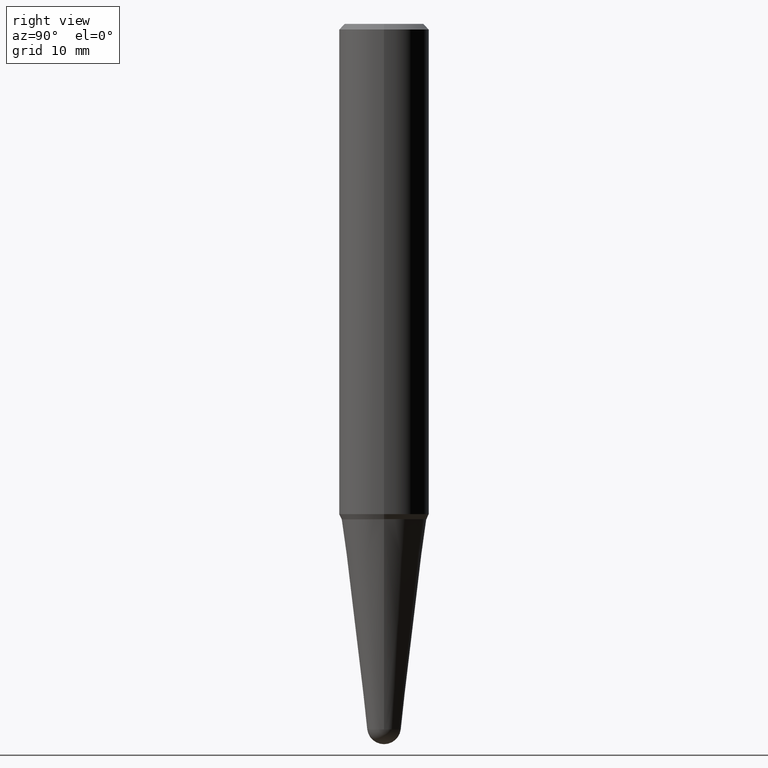
[diagram: clean part render]
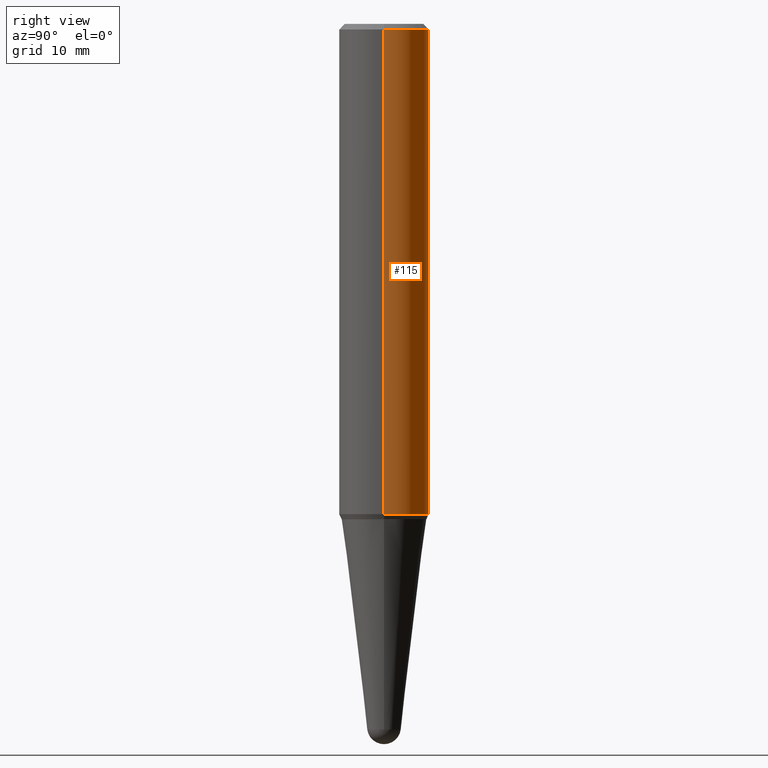
[diagram: same view with one face highlighted and labeled with its STEP entity id]
A machine part, right view. The second image highlights one B-rep face of the part: STEP entity #115.
In plain terms, the highlighted cylindrical surface (partial cylindrical patch) has radius 6.35 mm, axis along (-0, 0, 1).
Its self-contained STEP definition (entity closure, byte-faithful):
#9 = VECTOR ( 'NONE', #112, 39.37007874015748143 ) ;
#23 = AXIS2_PLACEMENT_3D ( 'NONE', #328, #224, #193 ) ;
#24 = CARTESIAN_POINT ( 'NONE',  ( -0.2500000000000001665, 1.776356839400254015E-15, 5.931196827434174486E-16 ) ) ;
#57 = ORIENTED_EDGE ( 'NONE', *, *, #352, .T. ) ;
#58 = CARTESIAN_POINT ( 'NONE',  ( 0.2500000000000003331, -1.125173466965008602E-14, -2.722624891181058437 ) ) ;
#59 = ORIENTED_EDGE ( 'NONE', *, *, #459, .F. ) ;
#71 = LINE ( 'NONE', #143, #9 ) ;
#86 = DIRECTION ( 'NONE',  ( -2.445468806185136597E-29, 3.491481338843145583E-15, 1.000000000000000000 ) ) ;
#105 = DIRECTION ( 'NONE',  ( -2.445468806185136597E-29, 3.491481338843145583E-15, 1.000000000000000000 ) ) ;
#112 = DIRECTION ( 'NONE',  ( -2.445468806185136877E-29, 3.491481338843145188E-15, 1.000000000000000000 ) ) ;
#115 = ADVANCED_FACE ( 'NONE', ( #329 ), #330, .T. ) ;
#143 = CARTESIAN_POINT ( 'NONE',  ( 0.2500000000000001665, -1.745740669421565692E-15, 5.931196827434418047E-16 ) ) ;
#162 = VERTEX_POINT ( 'NONE', #188 ) ;
#171 = EDGE_LOOP ( 'NONE', ( #304, #57, #252, #59 ) ) ;
#188 = CARTESIAN_POINT ( 'NONE',  ( -0.2500000000000003331, -7.729637160828264142E-15, -2.722624891181058437 ) ) ;
#193 = DIRECTION ( 'NONE',  ( 1.000000000000000000, -6.982962677686266711E-15, 0.000000000000000000 ) ) ;
#195 = EDGE_CURVE ( 'NONE', #243, #384, #227, .T. ) ;
#197 = AXIS2_PLACEMENT_3D ( 'NONE', #258, #86, #228 ) ;
#209 = DIRECTION ( 'NONE',  ( 1.000000000000000000, -6.982962677686269077E-15, 0.000000000000000000 ) ) ;
#224 = DIRECTION ( 'NONE',  ( -2.445468806185136597E-29, 3.491481338843145583E-15, 1.000000000000000000 ) ) ;
#227 = CIRCLE ( 'NONE', #23, 0.2500000000000000000 ) ;
#228 = DIRECTION ( 'NONE',  ( 1.000000000000000000, -6.982962677686266711E-15, 4.852736867747362844E-29 ) ) ;
#234 = VECTOR ( 'NONE', #303, 39.37007874015748143 ) ;
#242 = VERTEX_POINT ( 'NONE', #58 ) ;
#243 = VERTEX_POINT ( 'NONE', #412 ) ;
#252 = ORIENTED_EDGE ( 'NONE', *, *, #195, .F. ) ;
#258 = CARTESIAN_POINT ( 'NONE',  ( -1.450455682483482035E-44, 2.070866303999251778E-30, 5.931196827434296760E-16 ) ) ;
#265 = AXIS2_PLACEMENT_3D ( 'NONE', #425, #105, #209 ) ;
#303 = DIRECTION ( 'NONE',  ( -2.445468806185136877E-29, 3.491481338843145188E-15, 1.000000000000000000 ) ) ;
#304 = ORIENTED_EDGE ( 'NONE', *, *, #448, .T. ) ;
#328 = CARTESIAN_POINT ( 'NONE',  ( 7.642090019328565002E-31, -1.091087918388484967E-16, -0.03125000000000005551 ) ) ;
#329 = FACE_OUTER_BOUND ( 'NONE', #171, .T. ) ;
#330 = CYLINDRICAL_SURFACE ( 'NONE', #197, 0.2500000000000001665 ) ;
#352 = EDGE_CURVE ( 'NONE', #162, #384, #442, .T. ) ;
#370 = CARTESIAN_POINT ( 'NONE',  ( -0.2500000000000000000, -3.031194556633429811E-15, -0.03125000000000005551 ) ) ;
#384 = VERTEX_POINT ( 'NONE', #370 ) ;
#404 = CIRCLE ( 'NONE', #265, 0.2500000000000003331 ) ;
#412 = CARTESIAN_POINT ( 'NONE',  ( 0.2500000000000000000, -1.854849461260415384E-15, -0.03125000000000005551 ) ) ;
#425 = CARTESIAN_POINT ( 'NONE',  ( 6.658094242326480624E-29, -9.505994000228516185E-15, -2.722624891181058437 ) ) ;
#442 = LINE ( 'NONE', #24, #234 ) ;
#448 = EDGE_CURVE ( 'NONE', #242, #162, #404, .T. ) ;
#459 = EDGE_CURVE ( 'NONE', #242, #243, #71, .T. ) ;